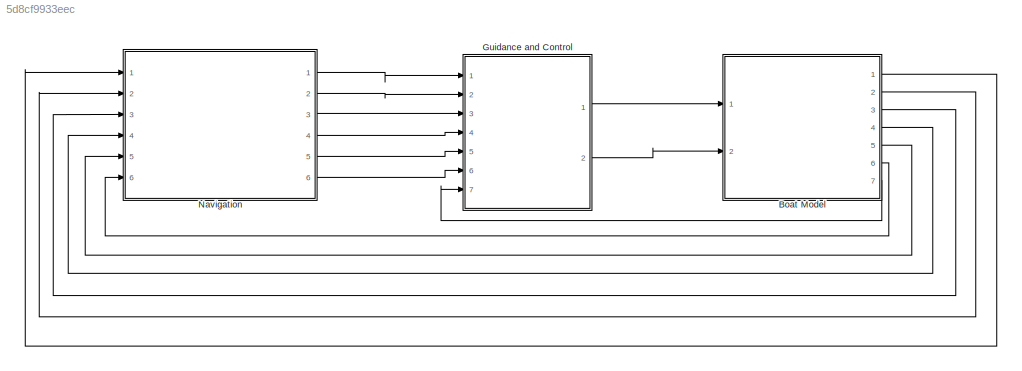
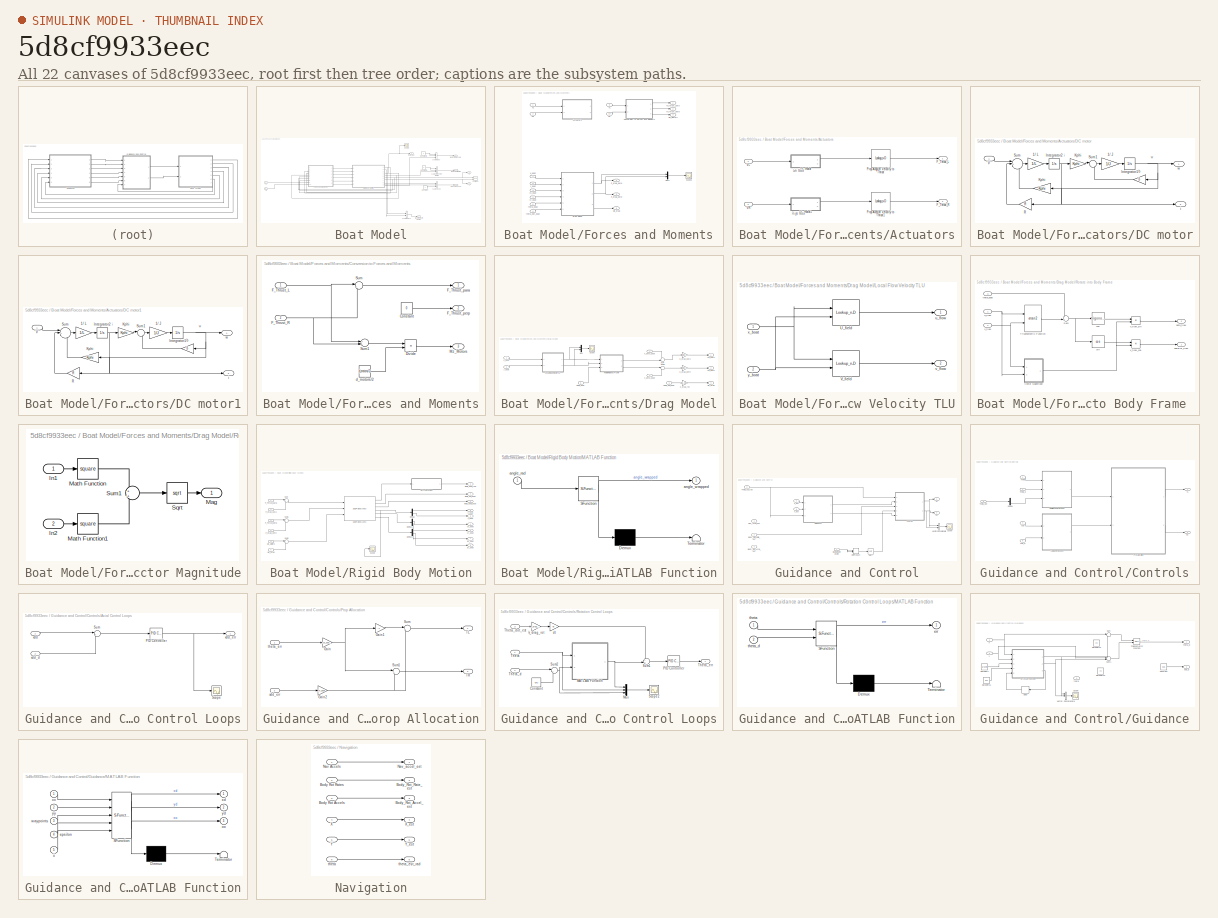
[diagram: thumbnail index - all 22 canvases of the model, root first then tree order]
MODEL slx_5d8cf9933eec
KIND model
CONFIG AbsTol = auto
CONFIG FixedStep = dt
CONFIG MaxStep = auto
CONFIG MinStep = auto
CONFIG RelTol = 1e-3
CONFIG SampleTimeConstraint = Unconstrained
CONFIG Solver = ode3
CONFIG SolverMode = Auto
CONFIG SolverName = ode3
CONFIG StartTime = 0.0
CONFIG StopTime = 100
BLOCK [SubSystem] Boat Model
  Ports = [2, 7]
  RequestExecContextInheritance = off
BLOCK [Concatenate] Boat Model/3 Axis Accel
  NumInputs = 3
  Ports = [3, 1]
BLOCK [Concatenate] Boat Model/3 Axis Body
  NumInputs = 3
  Ports = [3, 1]
BLOCK [Concatenate] Boat Model/3 Axis Body Rot Rates
  NumInputs = 3
  Ports = [3, 1]
BLOCK [Concatenate] Boat Model/3 Axis Body1
  Ports = [2, 1]
BLOCK [Outport] Boat Model/Boat Velocity Vector
  IconDisplay = Port number
  Port = 7
BLOCK [Outport] Boat Model/Body Rot Accels
  IconDisplay = Port number
  Port = 3
BLOCK [Outport] Boat Model/Body Rot Rates
  IconDisplay = Port number
  Port = 2
BLOCK [Constant] Boat Model/Constant
  Value = 0
BLOCK [Constant] Boat Model/Constant1
  Value = 0
BLOCK [Constant] Boat Model/Constant2
  Value = 0
BLOCK [SubSystem] Boat Model/Forces and Moments
  Ports = [10, 6]
  RequestExecContextInheritance = off
BLOCK [SubSystem] Boat Model/Forces and Moments/Actuators
  Ports = [2, 2]
  RequestExecContextInheritance = off
BLOCK [SubSystem] Boat Model/Forces and Moments/Actuators/DC motor
  Ports = [1, 2]
  RequestExecContextInheritance = off
BLOCK [Gain] Boat Model/Forces and Moments/Actuators/DC motor/1// J
  Gain = 1/J
  OutDataTypeStr = Inherit: Inherit via internal rule
  ParamDataTypeStr = Inherit: Inherit via internal rule
  SaturateOnIntegerOverflow = off
BLOCK [Gain] Boat Model/Forces and Moments/Actuators/DC motor/1// L
  Gain = 1/L
  OutDataTypeStr = Inherit: Inherit via internal rule
  ParamDataTypeStr = Inherit: Inherit via internal rule
  SaturateOnIntegerOverflow = off
BLOCK [Integrator] Boat Model/Forces and Moments/Actuators/DC motor/Integrator1
  Ports = [1, 1]
BLOCK [Integrator] Boat Model/Forces and Moments/Actuators/DC motor/Integrator2
  Ports = [1, 1]
BLOCK [Gain] Boat Model/Forces and Moments/Actuators/DC motor/Kphi
  Gain = Kphi
  OutDataTypeStr = Inherit: Inherit via internal rule
  ParamDataTypeStr = Inherit: Inherit via internal rule
  SaturateOnIntegerOverflow = off
BLOCK [Gain] Boat Model/Forces and Moments/Actuators/DC motor/Kphi 
  Gain = Kphi
  OutDataTypeStr = Inherit: Inherit via internal rule
  ParamDataTypeStr = Inherit: Inherit via internal rule
  SaturateOnIntegerOverflow = off
BLOCK [Gain] Boat Model/Forces and Moments/Actuators/DC motor/R
  Gain = R
  OutDataTypeStr = Inherit: Inherit via internal rule
  ParamDataTypeStr = Inherit: Inherit via internal rule
  SaturateOnIntegerOverflow = off
BLOCK [Sum] Boat Model/Forces and Moments/Actuators/DC motor/Sum
  IconShape = round
  InputSameDT = off
  Inputs = |+--
  OutDataTypeStr = Inherit: Inherit via internal rule
  Ports = [3, 1]
  SaturateOnIntegerOverflow = off
BLOCK [Sum] Boat Model/Forces and Moments/Actuators/DC motor/Sum1
  IconShape = round
  InputSameDT = off
  Inputs = |+-
  OutDataTypeStr = Inherit: Inherit via internal rule
  Ports = [2, 1]
  SaturateOnIntegerOverflow = off
BLOCK [Inport] Boat Model/Forces and Moments/Actuators/DC motor/V
  IconDisplay = Port number
BLOCK [Gain] Boat Model/Forces and Moments/Actuators/DC motor/b
  Gain = b
  OutDataTypeStr = Inherit: Inherit via internal rule
  ParamDataTypeStr = Inherit: Inherit via internal rule
  SaturateOnIntegerOverflow = off
BLOCK [Outport] Boat Model/Forces and Moments/Actuators/DC motor/i
  IconDisplay = Port number
  Port = 2
BLOCK [Outport] Boat Model/Forces and Moments/Actuators/DC motor/w
  IconDisplay = Port number
BLOCK [SubSystem] Boat Model/Forces and Moments/Actuators/DC motor1
  Ports = [1, 2]
  RequestExecContextInheritance = off
BLOCK [Gain] Boat Model/Forces and Moments/Actuators/DC motor1/1// J
  Gain = 1/J
  OutDataTypeStr = Inherit: Inherit via internal rule
  ParamDataTypeStr = Inherit: Inherit via internal rule
  SaturateOnIntegerOverflow = off
BLOCK [Gain] Boat Model/Forces and Moments/Actuators/DC motor1/1// L
  Gain = 1/L
  OutDataTypeStr = Inherit: Inherit via internal rule
  ParamDataTypeStr = Inherit: Inherit via internal rule
  SaturateOnIntegerOverflow = off
BLOCK [Integrator] Boat Model/Forces and Moments/Actuators/DC motor1/Integrator1
  Ports = [1, 1]
BLOCK [Integrator] Boat Model/Forces and Moments/Actuators/DC motor1/Integrator2
  Ports = [1, 1]
BLOCK [Gain] Boat Model/Forces and Moments/Actuators/DC motor1/Kphi
  Gain = Kphi
  OutDataTypeStr = Inherit: Inherit via internal rule
  ParamDataTypeStr = Inherit: Inherit via internal rule
  SaturateOnIntegerOverflow = off
BLOCK [Gain] Boat Model/Forces and Moments/Actuators/DC motor1/Kphi 
  Gain = Kphi
  OutDataTypeStr = Inherit: Inherit via internal rule
  ParamDataTypeStr = Inherit: Inherit via internal rule
  SaturateOnIntegerOverflow = off
BLOCK [Gain] Boat Model/Forces and Moments/Actuators/DC motor1/R
  Gain = R
  OutDataTypeStr = Inherit: Inherit via internal rule
  ParamDataTypeStr = Inherit: Inherit via internal rule
  SaturateOnIntegerOverflow = off
BLOCK [Sum] Boat Model/Forces and Moments/Actuators/DC motor1/Sum
  IconShape = round
  InputSameDT = off
  Inputs = |+--
  OutDataTypeStr = Inherit: Inherit via internal rule
  Ports = [3, 1]
  SaturateOnIntegerOverflow = off
BLOCK [Sum] Boat Model/Forces and Moments/Actuators/DC motor1/Sum1
  IconShape = round
  InputSameDT = off
  Inputs = |+-
  OutDataTypeStr = Inherit: Inherit via internal rule
  Ports = [2, 1]
  SaturateOnIntegerOverflow = off
BLOCK [Inport] Boat Model/Forces and Moments/Actuators/DC motor1/V
  IconDisplay = Port number
BLOCK [Gain] Boat Model/Forces and Moments/Actuators/DC motor1/b
  Gain = b
  OutDataTypeStr = Inherit: Inherit via internal rule
  ParamDataTypeStr = Inherit: Inherit via internal rule
  SaturateOnIntegerOverflow = off
BLOCK [Outport] Boat Model/Forces and Moments/Actuators/DC motor1/i
  IconDisplay = Port number
  Port = 2
BLOCK [Outport] Boat Model/Forces and Moments/Actuators/DC motor1/w
  IconDisplay = Port number
BLOCK [Outport] Boat Model/Forces and Moments/Actuators/F_Thrust_L
  IconDisplay = Port number
BLOCK [Outport] Boat Model/Forces and Moments/Actuators/F_Thrust_R
  IconDisplay = Port number
  Port = 2
BLOCK [Lookup_n-D] Boat Model/Forces and Moments/Actuators/Prop Angular Velocity to Thrust
  BreakpointsForDimension1 = [-5:5]
  InternalRulePriority = Speed
  NumberOfTableDimensions = 1
  Ports = [1, 1]
  RndMeth = Simplest
  Table = tanh([-5:5])
BLOCK [Lookup_n-D] Boat Model/Forces and Moments/Actuators/Prop Angular Velocity to Thrust1
  BreakpointsForDimension1 = [-5:5]
  InternalRulePriority = Speed
  NumberOfTableDimensions = 1
  Ports = [1, 1]
  RndMeth = Simplest
  Table = tanh([-5:5])
BLOCK [Inport] Boat Model/Forces and Moments/Actuators/VL
  IconDisplay = Port number
BLOCK [Inport] Boat Model/Forces and Moments/Actuators/VR
  IconDisplay = Port number
  Port = 2
BLOCK [SubSystem] Boat Model/Forces and Moments/Conversion to Forces and Moments
  Ports = [2, 3]
  RequestExecContextInheritance = off
BLOCK [Constant] Boat Model/Forces and Moments/Conversion to Forces and Moments/Constant
  Value = 0
BLOCK [Product] Boat Model/Forces and Moments/Conversion to Forces and Moments/Divide
  InputSameDT = off
  Inputs = */
  OutDataTypeStr = Inherit: Inherit via internal rule
  Ports = [2, 1]
  RndMeth = Floor
  SaturateOnIntegerOverflow = off
BLOCK [Inport] Boat Model/Forces and Moments/Conversion to Forces and Moments/F_Thrust_L
  IconDisplay = Port number
BLOCK [Inport] Boat Model/Forces and Moments/Conversion to Forces and Moments/F_Thrust_R
  IconDisplay = Port number
  Port = 2
BLOCK [Outport] Boat Model/Forces and Moments/Conversion to Forces and Moments/F_Thrust_para
  IconDisplay = Port number
BLOCK [Outport] Boat Model/Forces and Moments/Conversion to Forces and Moments/F_Thrust_perp
  IconDisplay = Port number
  Port = 2
BLOCK [Outport] Boat Model/Forces and Moments/Conversion to Forces and Moments/Mz_Motors
  IconDisplay = Port number
  Port = 3
BLOCK [Sum] Boat Model/Forces and Moments/Conversion to Forces and Moments/Sum
  IconShape = round
  InputSameDT = off
  Inputs = |++
  OutDataTypeStr = Inherit: Inherit via internal rule
  Ports = [2, 1]
  SaturateOnIntegerOverflow = off
BLOCK [Sum] Boat Model/Forces and Moments/Conversion to Forces and Moments/Sum1
  IconShape = round
  InputSameDT = off
  Inputs = +-|
  OutDataTypeStr = Inherit: Inherit via internal rule
  Ports = [2, 1]
  SaturateOnIntegerOverflow = off
BLOCK [Constant] Boat Model/Forces and Moments/Conversion to Forces and Moments/d_motors//2
  Value = d_motors/2
BLOCK [SubSystem] Boat Model/Forces and Moments/Drag Model
  Ports = [6, 3]
  RequestExecContextInheritance = off
BLOCK [Outport] Boat Model/Forces and Moments/Drag Model/Fd_para
  IconDisplay = Port number
BLOCK [Outport] Boat Model/Forces and Moments/Drag Model/Fd_perp
  IconDisplay = Port number
  Port = 2
BLOCK [SubSystem] Boat Model/Forces and Moments/Drag Model/Local Flow Velocity TLU
  Ports = [2, 2]
  RequestExecContextInheritance = off
BLOCK [Lookup_n-D] Boat Model/Forces and Moments/Drag Model/Local Flow Velocity TLU/U_field
  BeginIndexSearchUsingPreviousIndexResult = on
  BreakpointsForDimension1 = xs
  BreakpointsForDimension2 = ys
  ExtrapMethod = Clip
  InternalRulePriority = Speed
  Ports = [2, 1]
  RndMeth = Simplest
  Table = U_field'
  UseLastTableValue = on
BLOCK [Lookup_n-D] Boat Model/Forces and Moments/Drag Model/Local Flow Velocity TLU/V_field
  BeginIndexSearchUsingPreviousIndexResult = on
  BreakpointsForDimension1 = xs
  BreakpointsForDimension2 = ys
  ExtrapMethod = Clip
  InternalRulePriority = Speed
  Ports = [2, 1]
  RndMeth = Simplest
  Table = V_field_load'
  UseLastTableValue = on
BLOCK [Outport] Boat Model/Forces and Moments/Drag Model/Local Flow Velocity TLU/u_flow
  IconDisplay = Port number
BLOCK [Outport] Boat Model/Forces and Moments/Drag Model/Local Flow Velocity TLU/v_flow
  IconDisplay = Port number
  Port = 2
BLOCK [Inport] Boat Model/Forces and Moments/Drag Model/Local Flow Velocity TLU/x_boat
  IconDisplay = Port number
BLOCK [Inport] Boat Model/Forces and Moments/Drag Model/Local Flow Velocity TLU/y_boat
  IconDisplay = Port number
  Port = 2
BLOCK [Mux] Boat Model/Forces and Moments/Drag Model/Mux
  DisplayOption = bar
  Inputs = 2
  Ports = [2, 1]
BLOCK [Outport] Boat Model/Forces and Moments/Drag Model/Mz_drag
  IconDisplay = Port number
  Port = 3
BLOCK [SubSystem] Boat Model/Forces and Moments/Drag Model/Rotate into Body Frame 
  Ports = [3, 2]
  RequestExecContextInheritance = off
BLOCK [Sum] Boat Model/Forces and Moments/Drag Model/Rotate into Body Frame /Sum
  IconShape = round
  InputSameDT = off
  Inputs = -+|
  OutDataTypeStr = Inherit: Inherit via internal rule
  Ports = [2, 1]
  SaturateOnIntegerOverflow = off
BLOCK [Trigonometry] Boat Model/Forces and Moments/Drag Model/Rotate into Body Frame /Trigonometric Function
  Operator = atan2
  Ports = [2, 1]
BLOCK [SubSystem] Boat Model/Forces and Moments/Drag Model/Rotate into Body Frame /Vector Magnitude
  Ports = [2, 1]
  RequestExecContextInheritance = off
BLOCK [Inport] Boat Model/Forces and Moments/Drag Model/Rotate into Body Frame /Vector Magnitude/In1
  IconDisplay = Port number
BLOCK [Inport] Boat Model/Forces and Moments/Drag Model/Rotate into Body Frame /Vector Magnitude/In2
  IconDisplay = Port number
  Port = 2
BLOCK [Outport] Boat Model/Forces and Moments/Drag Model/Rotate into Body Frame /Vector Magnitude/Mag
  IconDisplay = Port number
BLOCK [Math] Boat Model/Forces and Moments/Drag Model/Rotate into Body Frame /Vector Magnitude/Math Function
  Operator = square
  Ports = [1, 1]
BLOCK [Math] Boat Model/Forces and Moments/Drag Model/Rotate into Body Frame /Vector Magnitude/Math Function1
  Operator = square
  Ports = [1, 1]
BLOCK [Sqrt] Boat Model/Forces and Moments/Drag Model/Rotate into Body Frame /Vector Magnitude/Sqrt
BLOCK [Sum] Boat Model/Forces and Moments/Drag Model/Rotate into Body Frame /Vector Magnitude/Sum1
  IconShape = round
  InputSameDT = off
  OutDataTypeStr = Inherit: Inherit via internal rule
  Ports = [2, 1]
  SaturateOnIntegerOverflow = off
BLOCK [Trigonometry] Boat Model/Forces and Moments/Drag Model/Rotate into Body Frame /cos 
  Ports = [1, 1]
BLOCK [Outport] Boat Model/Forces and Moments/Drag Model/Rotate into Body Frame /parallel_flow
  IconDisplay = Port number
BLOCK [Outport] Boat Model/Forces and Moments/Drag Model/Rotate into Body Frame /perp_flow
  IconDisplay = Port number
  Port = 2
BLOCK [Trigonometry] Boat Model/Forces and Moments/Drag Model/Rotate into Body Frame /sin
  Operator = cos
  Ports = [1, 1]
BLOCK [Inport] Boat Model/Forces and Moments/Drag Model/Rotate into Body Frame /theta_boat
  IconDisplay = Port number
  Port = 3
BLOCK [Inport] Boat Model/Forces and Moments/Drag Model/Rotate into Body Frame /u_flow
  IconDisplay = Port number
BLOCK [Inport] Boat Model/Forces and Moments/Drag Model/Rotate into Body Frame /v_flow
  IconDisplay = Port number
  Port = 2
BLOCK [Product] Boat Model/Forces and Moments/Drag Model/Rotate into Body Frame /v_flow_cos
  InputSameDT = off
  Inputs = **
  OutDataTypeStr = Inherit: Inherit via internal rule
  Ports = [2, 1]
  RndMeth = Floor
  SaturateOnIntegerOverflow = off
BLOCK [Product] Boat Model/Forces and Moments/Drag Model/Rotate into Body Frame /v_flow_sin
  InputSameDT = off
  Inputs = **
  OutDataTypeStr = Inherit: Inherit via internal rule
  Ports = [2, 1]
  RndMeth = Floor
  SaturateOnIntegerOverflow = off
BLOCK [Scope] Boat Model/Forces and Moments/Drag Model/Scope
  Floating = off
  NumInputPorts = 1
  Ports = [1]
  SaveName = ScopeData7
BLOCK [Sum] Boat Model/Forces and Moments/Drag Model/Sum
  IconShape = round
  InputSameDT = off
  Inputs = +-|
  OutDataTypeStr = Inherit: Inherit via internal rule
  Ports = [2, 1]
  SaturateOnIntegerOverflow = off
BLOCK [Sum] Boat Model/Forces and Moments/Drag Model/Sum1
  IconShape = round
  InputSameDT = off
  Inputs = |-+
  OutDataTypeStr = Inherit: Inherit via internal rule
  Ports = [2, 1]
  SaturateOnIntegerOverflow = off
BLOCK [Gain] Boat Model/Forces and Moments/Drag Model/k_drag_para
  Gain = k_drag_para
  OutDataTypeStr = Inherit: Inherit via internal rule
  ParamDataTypeStr = Inherit: Inherit via internal rule
  SaturateOnIntegerOverflow = off
BLOCK [Gain] Boat Model/Forces and Moments/Drag Model/k_drag_perp
  Gain = k_drag_perp
  OutDataTypeStr = Inherit: Inherit via internal rule
  ParamDataTypeStr = Inherit: Inherit via internal rule
  SaturateOnIntegerOverflow = off
BLOCK [Gain] Boat Model/Forces and Moments/Drag Model/k_drag_rot
  Gain = 1*k_drag_rot
  OutDataTypeStr = Inherit: Inherit via internal rule
  ParamDataTypeStr = Inherit: Inherit via internal rule
  SaturateOnIntegerOverflow = off
BLOCK [Inport] Boat Model/Forces and Moments/Drag Model/theta_boat
  IconDisplay = Port number
  Port = 5
BLOCK [Inport] Boat Model/Forces and Moments/Drag Model/theta_dot_boat
  IconDisplay = Port number
  Port = 6
BLOCK [Inport] Boat Model/Forces and Moments/Drag Model/v_para_boat
  IconDisplay = Port number
  Port = 3
BLOCK [Inport] Boat Model/Forces and Moments/Drag Model/v_perp_boat
  IconDisplay = Port number
  Port = 4
BLOCK [Inport] Boat Model/Forces and Moments/Drag Model/x_boat
  IconDisplay = Port number
BLOCK [Inport] Boat Model/Forces and Moments/Drag Model/y_boat
  IconDisplay = Port number
  Port = 2
BLOCK [Outport] Boat Model/Forces and Moments/F_drag_para
  IconDisplay = Port number
  Port = 4
BLOCK [Outport] Boat Model/Forces and Moments/F_drag_perp
  IconDisplay = Port number
  Port = 5
BLOCK [Outport] Boat Model/Forces and Moments/F_thrust_para
  IconDisplay = Port number
BLOCK [Outport] Boat Model/Forces and Moments/F_thrust_perp
  IconDisplay = Port number
  Port = 2
BLOCK [Mux] Boat Model/Forces and Moments/Mux1
  DisplayOption = bar
  Inputs = 2
  Ports = [2, 1]
BLOCK [Outport] Boat Model/Forces and Moments/Mz_drag
  IconDisplay = Port number
  Port = 6
BLOCK [Outport] Boat Model/Forces and Moments/Mz_motors
  IconDisplay = Port number
  Port = 3
BLOCK [Scope] Boat Model/Forces and Moments/Scope1
  Floating = off
  NumInputPorts = 1
  Ports = [1]
  SaveName = ScopeData6
BLOCK [Inport] Boat Model/Forces and Moments/TL
  IconDisplay = Port number
  Port = 9
BLOCK [Inport] Boat Model/Forces and Moments/TR
  IconDisplay = Port number
  Port = 10
BLOCK [Inport] Boat Model/Forces and Moments/VL
  IconDisplay = Port number
BLOCK [Inport] Boat Model/Forces and Moments/VR
  IconDisplay = Port number
  Port = 2
BLOCK [Inport] Boat Model/Forces and Moments/X_boat
  IconDisplay = Port number
  Port = 7
BLOCK [Inport] Boat Model/Forces and Moments/Y_boat
  IconDisplay = Port number
  Port = 8
BLOCK [Inport] Boat Model/Forces and Moments/theta_boat
  IconDisplay = Port number
  Port = 5
BLOCK [Inport] Boat Model/Forces and Moments/theta_dot_boat
  IconDisplay = Port number
  Port = 6
BLOCK [Inport] Boat Model/Forces and Moments/vx_boat
  IconDisplay = Port number
  Port = 3
BLOCK [Inport] Boat Model/Forces and Moments/vy_boat
  IconDisplay = Port number
  Port = 4
BLOCK [Outport] Boat Model/Nav Axis Accel
  IconDisplay = Port number
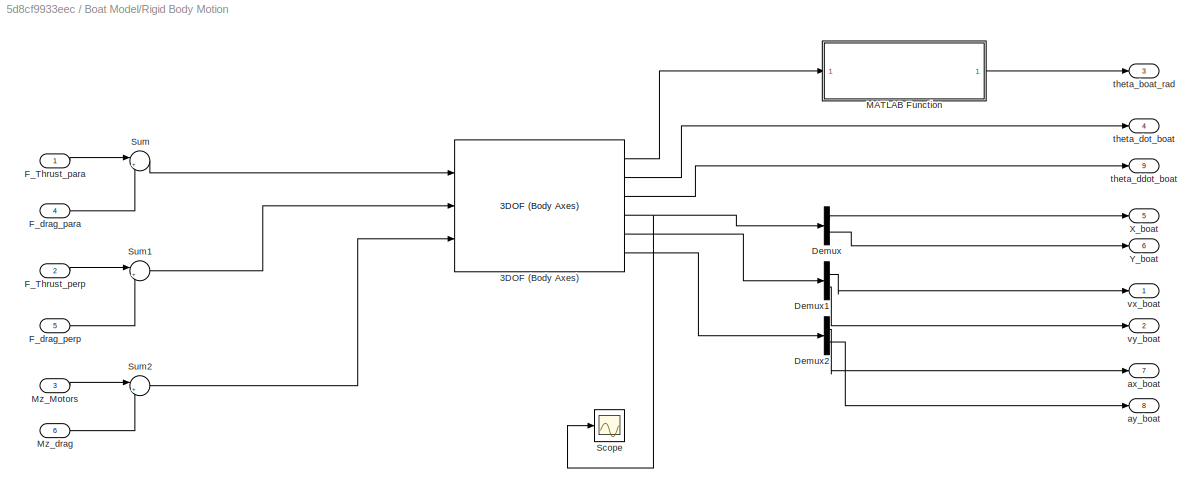
BLOCK [SubSystem] Boat Model/Rigid Body Motion
  Ports = [6, 9]
  RequestExecContextInheritance = off
BLOCK [Reference] Boat Model/Rigid Body Motion/3DOF (Body Axes)  REF=aerolib3dof2/3DOF (Body Axes)
  Iyy = Izz_boat
  Iyy_e = 0.5
  Iyy_f = 3.0
  Ports = [3, 6]
  SourceBlock = aerolib3dof2/3DOF (Body Axes)
  SourceType = 3DOF EoM
  alpha_ini = alpha0_boat
  g = 0
  g_in = Internal
  mass = m_boat
  mass_e = 0.5
  mass_f = 3.0
  mtype = Fixed
  pos_ini = x0_boat
  q_ini = theta_dot0_boat
  theta_ini = theta0_boat
  units = Metric (MKS)
  v_ini = v0_boat_mag
  vre_flag = on
BLOCK [Demux] Boat Model/Rigid Body Motion/Demux
  DisplayOption = bar
  Outputs = 2
  Ports = [1, 2]
BLOCK [Demux] Boat Model/Rigid Body Motion/Demux1
  DisplayOption = bar
  Outputs = 2
  Ports = [1, 2]
BLOCK [Demux] Boat Model/Rigid Body Motion/Demux2
  DisplayOption = bar
  Outputs = 2
  Ports = [1, 2]
BLOCK [Inport] Boat Model/Rigid Body Motion/F_Thrust_para
  IconDisplay = Port number
BLOCK [Inport] Boat Model/Rigid Body Motion/F_Thrust_perp
  IconDisplay = Port number
  Port = 2
BLOCK [Inport] Boat Model/Rigid Body Motion/F_drag_para
  IconDisplay = Port number
  Port = 4
BLOCK [Inport] Boat Model/Rigid Body Motion/F_drag_perp
  IconDisplay = Port number
  Port = 5
BLOCK [SubSystem] Boat Model/Rigid Body Motion/MATLAB Function
  ErrorFcn = Stateflow.Translate.translate
  PermitHierarchicalResolution = ExplicitOnly
  Ports = [1, 1]
  RequestExecContextInheritance = off
  SFBlockType = MATLAB Function
  TreatAsAtomicUnit = on
BLOCK [Demux] Boat Model/Rigid Body Motion/MATLAB Function/ Demux 
  Outputs = 1
  Ports = [1, 1]
BLOCK [S-Function] Boat Model/Rigid Body Motion/MATLAB Function/ SFunction 
  EnableBusSupport = on
  FunctionName = sf_sfun
  PortCounts = [1 2]
  Ports = [1, 2]
  Tag = Stateflow S-Function Boat_Simulation_Current 2
BLOCK [Terminator] Boat Model/Rigid Body Motion/MATLAB Function/ Terminator 
BLOCK [Inport] Boat Model/Rigid Body Motion/MATLAB Function/angle_rad
  IconDisplay = Port number
BLOCK [Outport] Boat Model/Rigid Body Motion/MATLAB Function/angle_wrapped
  IconDisplay = Port number
BLOCK [Inport] Boat Model/Rigid Body Motion/Mz_Motors
  IconDisplay = Port number
  Port = 3
BLOCK [Inport] Boat Model/Rigid Body Motion/Mz_drag
  IconDisplay = Port number
  Port = 6
BLOCK [Scope] Boat Model/Rigid Body Motion/Scope
  Floating = off
  NumInputPorts = 1
  Ports = [1]
  SaveName = ScopeData1
BLOCK [Sum] Boat Model/Rigid Body Motion/Sum
  IconShape = round
  InputSameDT = off
  Inputs = |+-
  OutDataTypeStr = Inherit: Inherit via internal rule
  Ports = [2, 1]
  SaturateOnIntegerOverflow = off
BLOCK [Sum] Boat Model/Rigid Body Motion/Sum1
  IconShape = round
  InputSameDT = off
  Inputs = |+-
  OutDataTypeStr = Inherit: Inherit via internal rule
  Ports = [2, 1]
  SaturateOnIntegerOverflow = off
BLOCK [Sum] Boat Model/Rigid Body Motion/Sum2
  IconShape = round
  InputSameDT = off
  Inputs = |+-
  OutDataTypeStr = Inherit: Inherit via internal rule
  Ports = [2, 1]
  SaturateOnIntegerOverflow = off
BLOCK [Outport] Boat Model/Rigid Body Motion/X_boat
  IconDisplay = Port number
  Port = 5
BLOCK [Outport] Boat Model/Rigid Body Motion/Y_boat
  IconDisplay = Port number
  Port = 6
BLOCK [Outport] Boat Model/Rigid Body Motion/ax_boat
  IconDisplay = Port number
  Port = 7
BLOCK [Outport] Boat Model/Rigid Body Motion/ay_boat
  IconDisplay = Port number
  Port = 8
BLOCK [Outport] Boat Model/Rigid Body Motion/theta_boat_rad
  IconDisplay = Port number
  Port = 3
BLOCK [Outport] Boat Model/Rigid Body Motion/theta_ddot_boat
  IconDisplay = Port number
  Port = 9
BLOCK [Outport] Boat Model/Rigid Body Motion/theta_dot_boat
  IconDisplay = Port number
  Port = 4
BLOCK [Outport] Boat Model/Rigid Body Motion/vx_boat
  IconDisplay = Port number
BLOCK [Outport] Boat Model/Rigid Body Motion/vy_boat
  IconDisplay = Port number
  Port = 2
BLOCK [Scope] Boat Model/Scope
  Floating = off
  NumInputPorts = 1
  Ports = [1]
  SaveName = ScopeData5
BLOCK [Inport] Boat Model/TL
  IconDisplay = Port number
BLOCK [Inport] Boat Model/TR
  IconDisplay = Port number
  Port = 2
BLOCK [Outport] Boat Model/X
  IconDisplay = Port number
  Port = 4
BLOCK [Reference] Boat Model/XY Graph  REF=simulink/Sinks/XY Graph
  Ports = [2]
  SourceBlock = simulink/Sinks/XY Graph
  SourceType = XY scope.
  st = 0.01
  xmax = 2
  xmin = 0
  ymax = 1
  ymin = 0
BLOCK [Outport] Boat Model/Y
  IconDisplay = Port number
  Port = 5
BLOCK [Outport] Boat Model/theta_rad
  IconDisplay = Port number
  Port = 6
BLOCK [SubSystem] Guidance and Control
  Ports = [7, 2]
  RequestExecContextInheritance = off
BLOCK [Inport] Guidance and Control/Boat Velocity Vector
  IconDisplay = Port number
  Port = 7
BLOCK [Inport] Guidance and Control/Body_Rot_Accel_est
  IconDisplay = Port number
  Port = 3
BLOCK [Inport] Guidance and Control/Body_Rot_Rate_est
  IconDisplay = Port number
  Port = 2
BLOCK [SubSystem] Guidance and Control/Controls
  Ports = [5, 2]
  RequestExecContextInheritance = off
BLOCK [SubSystem] Guidance and Control/Controls/Axial Control Loops
  Ports = [2, 1]
  RequestExecContextInheritance = off
BLOCK [Reference] Guidance and Control/Controls/Axial Control Loops/PID Controller  REF=simulink/Continuous/PID Controller
  AntiWindupMode = none
  Controller = PID
  ControllerParametersSource = internal
  D = 0
  DGainOutDataTypeStr = Inherit: Inherit via internal rule
  DOutDataTypeStr = Inherit: Inherit via internal rule
  DOutMax = []
  DOutMin = []
  DParamDataTypeStr = Inherit: Inherit via internal rule
  DParamMax = []
  DParamMin = []
  DProdOutDataTypeStr = Inherit: Inherit via internal rule
  DifferentiatorICPrevScaledInput = 0
  DifferentiatorOutDataTypeStr = Inherit: Inherit via internal rule
  DifferentiatorOutMax = []
  DifferentiatorOutMin = []
  ExternalReset = none
  FilterContinuousStateAttributes = ''
  FilterMethod = Forward Euler
  FilterOutDataTypeStr = Inherit: Inherit via internal rule
  FilterOutMax = []
  FilterOutMin = []
  FilterRTWStateStorageClass = Auto
  FilterStateMustResolveToSignalObject = off
  Form = Parallel
  I = 0
  IGainOutDataTypeStr = Inherit: Inherit via internal rule
  IOutDataTypeStr = Inherit: Inherit via internal rule
  IOutMax = []
  IOutMin = []
  IParamDataTypeStr = Inherit: Inherit via internal rule
  IParamMax = []
  IParamMin = []
  IProdOutDataTypeStr = Inherit: Inherit via internal rule
  IgnoreLimit = off
  InitialConditionForFilter = 0
  InitialConditionForIntegrator = 0
  InitialConditionSource = internal
  IntegratorContinuousStateAttributes = ''
  IntegratorMethod = Forward Euler
  IntegratorOutDataTypeStr = Inherit: Inherit via internal rule
  IntegratorOutMax = []
  IntegratorOutMin = []
  IntegratorRTWStateStorageClass = Auto
  IntegratorStateMustResolveToSignalObject = off
  Kb = 1
  KbOutDataTypeStr = Inherit: Inherit via internal rule
  KbOutMax = []
  KbOutMin = []
  KbParamDataTypeStr = Inherit: Inherit via internal rule
  KbParamMax = []
  KbParamMin = []
  Kt = 1
  KtOutDataTypeStr = Inherit: Inherit via internal rule
  KtOutMax = []
  KtOutMin = []
  KtParamDataTypeStr = Inherit: Inherit via internal rule
  KtParamMax = []
  KtParamMin = []
  LimitOutput = off
  LinearizeAsGain = on
  LockScale = off
  LowerSaturationLimit = -inf
  N = 1
  NGainOutDataTypeStr = Inherit: Inherit via internal rule
  NOutDataTypeStr = Inherit: Inherit via internal rule
  NOutMax = []
  NOutMin = []
  NParamDataTypeStr = Inherit: Inherit via internal rule
  NParamMax = []
  NParamMin = []
  NProdOutDataTypeStr = Inherit: Inherit via internal rule
  P = 2
  PGainOutDataTypeStr = Inherit: Inherit via internal rule
  POutDataTypeStr = Inherit: Inherit via internal rule
  POutMax = []
  POutMin = []
  PParamDataTypeStr = Inherit: Inherit via internal rule
  PParamMax = []
  PParamMin = []
  PProdOutDataTypeStr = Inherit: Inherit via internal rule
  Ports = [1, 1]
  RndMeth = Floor
  SampleTime = -1
  SaturateOnIntegerOverflow = off
  SaturationOutDataTypeStr = Inherit: Same as input
  SaturationOutMax = []
  SaturationOutMin = []
  SourceBlock = simulink/Continuous/PID Controller
  SourceType = PID 1dof
  SumAccumDataTypeStr = Inherit: Inherit via internal rule
  SumDAccumDataTypeStr = Inherit: Inherit via internal rule
  SumDOutDataTypeStr = Inherit: Inherit via internal rule
  SumDOutMax = []
  SumDOutMin = []
  SumI1AccumDataTypeStr = Inherit: Inherit via internal rule
  SumI1OutDataTypeStr = Inherit: Inherit via internal rule
  SumI1OutMax = []
  SumI1OutMin = []
  SumI2AccumDataTypeStr = Inherit: Inherit via internal rule
  SumI2OutDataTypeStr = Inherit: Inherit via internal rule
  SumI2OutMax = []
  SumI2OutMin = []
  SumI3AccumDataTypeStr = Inherit: Inherit via internal rule
  SumI3OutDataTypeStr = Inherit: Inherit via internal rule
  SumI3OutMax = []
  SumI3OutMin = []
  SumOutDataTypeStr = Inherit: Inherit via internal rule
  SumOutMax = []
  SumOutMin = []
  TimeDomain = Continuous-time
  TrackingMode = off
  UpperSaturationLimit = inf
  UseFilter = on
  ZeroCross = on
BLOCK [Scope] Guidance and Control/Controls/Axial Control Loops/Scope
  Floating = off
  NumInputPorts = 1
  Ports = [1]
  SaveName = ScopeData3
BLOCK [Sum] Guidance and Control/Controls/Axial Control Loops/Sum
  IconShape = round
  InputSameDT = off
  Inputs = |++
  OutDataTypeStr = Inherit: Inherit via internal rule
  Ports = [2, 1]
  SaturateOnIntegerOverflow = off
BLOCK [Inport] Guidance and Control/Controls/Axial Control Loops/xdd
  IconDisplay = Port number
BLOCK [Inport] Guidance and Control/Controls/Axial Control Loops/xdd_d
  IconDisplay = Port number
  Port = 2
BLOCK [Outport] Guidance and Control/Controls/Axial Control Loops/xdd_err
  IconDisplay = Port number
BLOCK [Demux] Guidance and Control/Controls/Demux
  DisplayOption = bar
  Outputs = 3
  Ports = [1, 3]
BLOCK [SubSystem] Guidance and Control/Controls/Prop Allocation
  Ports = [2, 2]
  RequestExecContextInheritance = off
BLOCK [Gain] Guidance and Control/Controls/Prop Allocation/Gain
  Gain = Izz_boat/(2*d_motors)
  OutDataTypeStr = Inherit: Inherit via internal rule
  ParamDataTypeStr = Inherit: Inherit via internal rule
  SaturateOnIntegerOverflow = off
BLOCK [Gain] Guidance and Control/Controls/Prop Allocation/Gain1
  Gain = -1
  OutDataTypeStr = Inherit: Inherit via internal rule
  ParamDataTypeStr = Inherit: Inherit via internal rule
  SaturateOnIntegerOverflow = off
BLOCK [Gain] Guidance and Control/Controls/Prop Allocation/Gain2
  Gain = m_boat
  OutDataTypeStr = Inherit: Inherit via internal rule
  ParamDataTypeStr = Inherit: Inherit via internal rule
  SaturateOnIntegerOverflow = off
BLOCK [Sum] Guidance and Control/Controls/Prop Allocation/Sum
  IconShape = round
  InputSameDT = off
  Inputs = |++
  OutDataTypeStr = Inherit: Inherit via internal rule
  Ports = [2, 1]
  SaturateOnIntegerOverflow = off
BLOCK [Sum] Guidance and Control/Controls/Prop Allocation/Sum1
  IconShape = round
  InputSameDT = off
  Inputs = |++
  OutDataTypeStr = Inherit: Inherit via internal rule
  Ports = [2, 1]
  SaturateOnIntegerOverflow = off
BLOCK [Outport] Guidance and Control/Controls/Prop Allocation/TL
  IconDisplay = Port number
BLOCK [Outport] Guidance and Control/Controls/Prop Allocation/TR
  IconDisplay = Port number
  Port = 2
BLOCK [Inport] Guidance and Control/Controls/Prop Allocation/theta_err
  IconDisplay = Port number
BLOCK [Inport] Guidance and Control/Controls/Prop Allocation/xdd_err
  IconDisplay = Port number
  Port = 2
BLOCK [SubSystem] Guidance and Control/Controls/Rotation Control Loops
  Ports = [3, 1]
  RequestExecContextInheritance = off
BLOCK [Constant] Guidance and Control/Controls/Rotation Control Loops/Constant
  Value = -pi/2
BLOCK [SubSystem] Guidance and Control/Controls/Rotation Control Loops/MATLAB Function
  ErrorFcn = Stateflow.Translate.translate
  PermitHierarchicalResolution = ExplicitOnly
  Ports = [2, 1]
  RequestExecContextInheritance = off
  SFBlockType = MATLAB Function
  TreatAsAtomicUnit = on
BLOCK [Demux] Guidance and Control/Controls/Rotation Control Loops/MATLAB Function/ Demux 
  Outputs = 1
  Ports = [1, 1]
BLOCK [S-Function] Guidance and Control/Controls/Rotation Control Loops/MATLAB Function/ SFunction 
  EnableBusSupport = on
  FunctionName = sf_sfun
  PortCounts = [2 2]
  Ports = [2, 2]
  Tag = Stateflow S-Function Boat_Simulation_Current 1
BLOCK [Terminator] Guidance and Control/Controls/Rotation Control Loops/MATLAB Function/ Terminator 
BLOCK [Outport] Guidance and Control/Controls/Rotation Control Loops/MATLAB Function/err
  IconDisplay = Port number
BLOCK [Inport] Guidance and Control/Controls/Rotation Control Loops/MATLAB Function/theta
  IconDisplay = Port number
BLOCK [Inport] Guidance and Control/Controls/Rotation Control Loops/MATLAB Function/theta_d
  IconDisplay = Port number
  Port = 2
BLOCK [Mux] Guidance and Control/Controls/Rotation Control Loops/Mux
  DisplayOption = bar
  Inputs = 3
  Ports = [3, 1]
BLOCK [Reference] Guidance and Control/Controls/Rotation Control Loops/PID Controller  REF=simulink/Continuous/PID Controller
  AntiWindupMode = none
  Controller = PID
  ControllerParametersSource = internal
  D = 53.2126725959305
  DGainOutDataTypeStr = Inherit: Inherit via internal rule
  DOutDataTypeStr = Inherit: Inherit via internal rule
  DOutMax = []
  DOutMin = []
  DParamDataTypeStr = Inherit: Inherit via internal rule
  DParamMax = []
  DParamMin = []
  DProdOutDataTypeStr = Inherit: Inherit via internal rule
  DifferentiatorICPrevScaledInput = 0
  DifferentiatorOutDataTypeStr = Inherit: Inherit via internal rule
  DifferentiatorOutMax = []
  DifferentiatorOutMin = []
  ExternalReset = none
  FilterContinuousStateAttributes = ''
  FilterMethod = Forward Euler
  FilterOutDataTypeStr = Inherit: Inherit via internal rule
  FilterOutMax = []
  FilterOutMin = []
  FilterRTWStateStorageClass = Auto
  FilterStateMustResolveToSignalObject = off
  Form = Parallel
  I = 15.2555608974445
  IGainOutDataTypeStr = Inherit: Inherit via internal rule
  IOutDataTypeStr = Inherit: Inherit via internal rule
  IOutMax = []
  IOutMin = []
  IParamDataTypeStr = Inherit: Inherit via internal rule
  IParamMax = []
  IParamMin = []
  IProdOutDataTypeStr = Inherit: Inherit via internal rule
  IgnoreLimit = off
  InitialConditionForFilter = 0
  InitialConditionForIntegrator = 0
  InitialConditionSource = internal
  IntegratorContinuousStateAttributes = ''
  IntegratorMethod = Forward Euler
  IntegratorOutDataTypeStr = Inherit: Inherit via internal rule
  IntegratorOutMax = []
  IntegratorOutMin = []
  IntegratorRTWStateStorageClass = Auto
  IntegratorStateMustResolveToSignalObject = off
  Kb = 1
  KbOutDataTypeStr = Inherit: Inherit via internal rule
  KbOutMax = []
  KbOutMin = []
  KbParamDataTypeStr = Inherit: Inherit via internal rule
  KbParamMax = []
  KbParamMin = []
  Kt = 1
  KtOutDataTypeStr = Inherit: Inherit via internal rule
  KtOutMax = []
  KtOutMin = []
  KtParamDataTypeStr = Inherit: Inherit via internal rule
  KtParamMax = []
  KtParamMin = []
  LimitOutput = off
  LinearizeAsGain = on
  LockScale = off
  LowerSaturationLimit = -inf
  N = 9.87406572709915
  NGainOutDataTypeStr = Inherit: Inherit via internal rule
  NOutDataTypeStr = Inherit: Inherit via internal rule
  NOutMax = []
  NOutMin = []
  NParamDataTypeStr = Inherit: Inherit via internal rule
  NParamMax = []
  NParamMin = []
  NProdOutDataTypeStr = Inherit: Inherit via internal rule
  P = 67.5587249594712
  PGainOutDataTypeStr = Inherit: Inherit via internal rule
  POutDataTypeStr = Inherit: Inherit via internal rule
  POutMax = []
  POutMin = []
  PParamDataTypeStr = Inherit: Inherit via internal rule
  PParamMax = []
  PParamMin = []
  PProdOutDataTypeStr = Inherit: Inherit via internal rule
  Ports = [1, 1]
  RndMeth = Floor
  SampleTime = -1
  SaturateOnIntegerOverflow = off
  SaturationOutDataTypeStr = Inherit: Same as input
  SaturationOutMax = []
  SaturationOutMin = []
  SourceBlock = simulink/Continuous/PID Controller
  SourceType = PID 1dof
  SumAccumDataTypeStr = Inherit: Inherit via internal rule
  SumDAccumDataTypeStr = Inherit: Inherit via internal rule
  SumDOutDataTypeStr = Inherit: Inherit via internal rule
  SumDOutMax = []
  SumDOutMin = []
  SumI1AccumDataTypeStr = Inherit: Inherit via internal rule
  SumI1OutDataTypeStr = Inherit: Inherit via internal rule
  SumI1OutMax = []
  SumI1OutMin = []
  SumI2AccumDataTypeStr = Inherit: Inherit via internal rule
  SumI2OutDataTypeStr = Inherit: Inherit via internal rule
  SumI2OutMax = []
  SumI2OutMin = []
  SumI3AccumDataTypeStr = Inherit: Inherit via internal rule
  SumI3OutDataTypeStr = Inherit: Inherit via internal rule
  SumI3OutMax = []
  SumI3OutMin = []
  SumOutDataTypeStr = Inherit: Inherit via internal rule
  SumOutMax = []
  SumOutMin = []
  TimeDomain = Continuous-time
  TrackingMode = off
  UpperSaturationLimit = inf
  UseFilter = on
  ZeroCross = on
BLOCK [Scope] Guidance and Control/Controls/Rotation Control Loops/Scope2
  Floating = off
  LegendLocations = 0.90399     0.90404    0.076042    0.052189
  NumInputPorts = 1
  Ports = [1]
  ShowLegends = on
  ZoomMode = xonly
BLOCK [Sum] Guidance and Control/Controls/Rotation Control Loops/Sum1
  IconShape = round
  InputSameDT = off
  Inputs = ++|
  OutDataTypeStr = Inherit: Inherit via internal rule
  Ports = [2, 1]
  SaturateOnIntegerOverflow = off
BLOCK [Sum] Guidance and Control/Controls/Rotation Control Loops/Sum2
  IconShape = round
  InputSameDT = off
  Inputs = |++
  OutDataTypeStr = Inherit: Inherit via internal rule
  Ports = [2, 1]
  SaturateOnIntegerOverflow = off
BLOCK [Inport] Guidance and Control/Controls/Rotation Control Loops/Theta
  IconDisplay = Port number
BLOCK [Inport] Guidance and Control/Controls/Rotation Control Loops/Theta_d
  IconDisplay = Port number
  Port = 2
BLOCK [Inport] Guidance and Control/Controls/Rotation Control Loops/Theta_dot_est
  IconDisplay = Port number
  Port = 3
BLOCK [Outport] Guidance and Control/Controls/Rotation Control Loops/Theta_err
  IconDisplay = Port number
BLOCK [Gain] Guidance and Control/Controls/Rotation Control Loops/dt
  Gain = dt
  OutDataTypeStr = Inherit: Inherit via internal rule
  ParamDataTypeStr = Inherit: Inherit via internal rule
  SaturateOnIntegerOverflow = off
BLOCK [Gain] Guidance and Control/Controls/Rotation Control Loops/k_drag_rot
  Gain = k_drag_rot
  OutDataTypeStr = Inherit: Inherit via internal rule
  ParamDataTypeStr = Inherit: Inherit via internal rule
  SaturateOnIntegerOverflow = off
BLOCK [Outport] Guidance and Control/Controls/TL
  IconDisplay = Port number
BLOCK [Outport] Guidance and Control/Controls/TR
  IconDisplay = Port number
  Port = 2
BLOCK [Inport] Guidance and Control/Controls/Theta
  IconDisplay = Port number
BLOCK [Inport] Guidance and Control/Controls/Theta_d
  IconDisplay = Port number
  Port = 2
BLOCK [Inport] Guidance and Control/Controls/Theta_dot
  IconDisplay = Port number
  Port = 3
BLOCK [Inport] Guidance and Control/Controls/xdd
  IconDisplay = Port number
  Port = 4
BLOCK [Inport] Guidance and Control/Controls/xdd_d
  IconDisplay = Port number
  Port = 5
BLOCK [DotProduct] Guidance and Control/Dot Product
  OutDataTypeStr = Inherit: Inherit via internal rule
BLOCK [SubSystem] Guidance and Control/Guidance
  Ports = [3, 2]
  RequestExecContextInheritance = off
BLOCK [Constant] Guidance and Control/Guidance/Constant
  Value = 0.05
BLOCK [Delay] Guidance and Control/Guidance/Delay
  DelayLength = 1
  InitialCondition = 1
  InputPortMap = u0
  Ports = [1, 1]
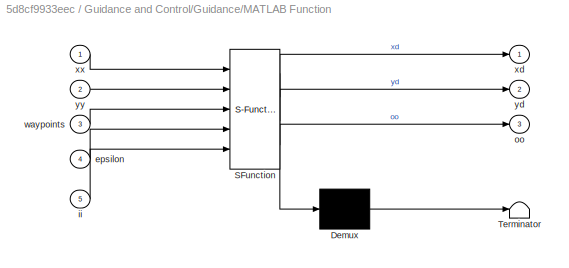
BLOCK [SubSystem] Guidance and Control/Guidance/MATLAB Function
  ErrorFcn = Stateflow.Translate.translate
  PermitHierarchicalResolution = ExplicitOnly
  Ports = [5, 3]
  RequestExecContextInheritance = off
  SFBlockType = MATLAB Function
  TreatAsAtomicUnit = on
BLOCK [Demux] Guidance and Control/Guidance/MATLAB Function/ Demux 
  Outputs = 1
  Ports = [1, 1]
BLOCK [S-Function] Guidance and Control/Guidance/MATLAB Function/ SFunction 
  EnableBusSupport = on
  FunctionName = sf_sfun
  PortCounts = [5 4]
  Ports = [5, 4]
  Tag = Stateflow S-Function Boat_Simulation_Current 3
BLOCK [Terminator] Guidance and Control/Guidance/MATLAB Function/ Terminator 
BLOCK [Inport] Guidance and Control/Guidance/MATLAB Function/epsilon
  IconDisplay = Port number
  Port = 4
BLOCK [Inport] Guidance and Control/Guidance/MATLAB Function/ii
  IconDisplay = Port number
  Port = 5
BLOCK [Outport] Guidance and Control/Guidance/MATLAB Function/oo
  IconDisplay = Port number
  Port = 3
BLOCK [Inport] Guidance and Control/Guidance/MATLAB Function/waypoints
  IconDisplay = Port number
  Port = 3
BLOCK [Outport] Guidance and Control/Guidance/MATLAB Function/xd
  IconDisplay = Port number
BLOCK [Inport] Guidance and Control/Guidance/MATLAB Function/xx
  IconDisplay = Port number
BLOCK [Outport] Guidance and Control/Guidance/MATLAB Function/yd
  IconDisplay = Port number
  Port = 2
BLOCK [Inport] Guidance and Control/Guidance/MATLAB Function/yy
  IconDisplay = Port number
  Port = 2
BLOCK [Scope] Guidance and Control/Guidance/Scope
  Floating = off
  NumInputPorts = 1
  Ports = [1]
  SaveName = ScopeData2
  ShowLegends = on
BLOCK [Sum] Guidance and Control/Guidance/Sum
  IconShape = round
  InputSameDT = off
  Inputs = |-+
  OutDataTypeStr = Inherit: Inherit via internal rule
  Ports = [2, 1]
  SaturateOnIntegerOverflow = off
BLOCK [Sum] Guidance and Control/Guidance/Sum1
  IconShape = round
  InputSameDT = off
  Inputs = |-+
  OutDataTypeStr = Inherit: Inherit via internal rule
  Ports = [2, 1]
  SaturateOnIntegerOverflow = off
BLOCK [Trigonometry] Guidance and Control/Guidance/Trigonometric Function
  Operator = atan2
  Ports = [2, 1]
BLOCK [Concatenate] Guidance and Control/Guidance/Vector Concatenate
  NumInputs = 3
  Ports = [3, 1]
BLOCK [Inport] Guidance and Control/Guidance/X
  IconDisplay = Port number
BLOCK [Inport] Guidance and Control/Guidance/Y
  IconDisplay = Port number
  Port = 2
BLOCK [Inport] Guidance and Control/Guidance/theta
  IconDisplay = Port number
  Port = 3
BLOCK [Outport] Guidance and Control/Guidance/theta_d
  IconDisplay = Port number
BLOCK [Constant] Guidance and Control/Guidance/waypoints
  Value = waypoints
BLOCK [Constant] Guidance and Control/Guidance/waypoints1
  Value = 0.01
BLOCK [Constant] Guidance and Control/Guidance/waypoints2
  Commented = on
  Value = xd
BLOCK [Constant] Guidance and Control/Guidance/waypoints3
  Commented = on
  Value = yd
BLOCK [Outport] Guidance and Control/Guidance/xdd_d
  IconDisplay = Port number
  Port = 2
BLOCK [Inport] Guidance and Control/Nav_Accel_est
  IconDisplay = Port number
BLOCK [Scope] Guidance and Control/Scope
  Floating = off
  NumInputPorts = 1
  Ports = [1]
  SaveName = ScopeData4
BLOCK [Sqrt] Guidance and Control/Sqrt
BLOCK [Outport] Guidance and Control/TL
  IconDisplay = Port number
BLOCK [Outport] Guidance and Control/TR
  IconDisplay = Port number
  Port = 2
BLOCK [Inport] Guidance and Control/Theta_est_rad
  IconDisplay = Port number
  Port = 6
BLOCK [Concatenate] Guidance and Control/Vector Concatenate
  Ports = [2, 1]
BLOCK [Inport] Guidance and Control/X_est
  IconDisplay = Port number
  Port = 4
BLOCK [Inport] Guidance and Control/Y_est
  IconDisplay = Port number
  Port = 5
BLOCK [SubSystem] Navigation
  Ports = [6, 6]
  RequestExecContextInheritance = off
BLOCK [Inport] Navigation/Body Rot Accels
  IconDisplay = Port number
  Port = 3
BLOCK [Inport] Navigation/Body Rot Rates
  IconDisplay = Port number
  Port = 2
BLOCK [Outport] Navigation/Body_Rot_Accel_est
  IconDisplay = Port number
  Port = 3
BLOCK [Outport] Navigation/Body_Rot_Rate_est
  IconDisplay = Port number
  Port = 2
BLOCK [Inport] Navigation/Nav Accels
  IconDisplay = Port number
BLOCK [Outport] Navigation/Nav_accel_est
  IconDisplay = Port number
BLOCK [Inport] Navigation/X
  IconDisplay = Port number
  Port = 4
BLOCK [Outport] Navigation/X_est
  IconDisplay = Port number
  Port = 4
BLOCK [Inport] Navigation/Y
  IconDisplay = Port number
  Port = 5
BLOCK [Outport] Navigation/Y_est
  IconDisplay = Port number
  Port = 5
BLOCK [Inport] Navigation/theta
  IconDisplay = Port number
  Port = 6
BLOCK [Outport] Navigation/theta_est_rad
  IconDisplay = Port number
  Port = 6
ANNOTATION Boat Model/Forces and Moments/Actuators: Left Motor
ANNOTATION Boat Model/Forces and Moments/Actuators: Right Motor
ANNOTATION Boat Model/Forces and Moments/Actuators/DC motor: i
ANNOTATION Boat Model/Forces and Moments/Actuators/DC motor: w
ANNOTATION Boat Model/Forces and Moments/Actuators/DC motor1: i
ANNOTATION Boat Model/Forces and Moments/Actuators/DC motor1: w
ANNOTATION Guidance and Control/Guidance: theta_d
LINE Boat Model/3 Axis Accel:1 -> Boat Model/Nav Axis Accel:1
LINE Boat Model/3 Axis Body Rot Rates:1 -> Boat Model/Body Rot Rates:1
LINE Boat Model/3 Axis Body1:1 -> Boat Model/Boat Velocity Vector:1
LINE Boat Model/3 Axis Body:1 -> Boat Model/Body Rot Accels:1
NET Boat Model/Constant1:1 -> Boat Model/3 Axis Body Rot Rates:1, Boat Model/3 Axis Body Rot Rates:2
NET Boat Model/Constant2:1 -> Boat Model/3 Axis Body:1, Boat Model/3 Axis Body:2
LINE Boat Model/Constant:1 -> Boat Model/3 Axis Accel:3
LINE Boat Model/Forces and Moments/Actuators/DC motor/1// J:1 -> Boat Model/Forces and Moments/Actuators/DC motor/Integrator1:1
LINE Boat Model/Forces and Moments/Actuators/DC motor/1// L:1 -> Boat Model/Forces and Moments/Actuators/DC motor/Integrator2:1
NET Boat Model/Forces and Moments/Actuators/DC motor/Integrator1:1 -> Boat Model/Forces and Moments/Actuators/DC motor/Kphi :1, Boat Model/Forces and Moments/Actuators/DC motor/b:1, Boat Model/Forces and Moments/Actuators/DC motor/w:1
NET Boat Model/Forces and Moments/Actuators/DC motor/Integrator2:1 -> Boat Model/Forces and Moments/Actuators/DC motor/Kphi:1, Boat Model/Forces and Moments/Actuators/DC motor/R:1, Boat Model/Forces and Moments/Actuators/DC motor/i:1
LINE Boat Model/Forces and Moments/Actuators/DC motor/Kphi :1 -> Boat Model/Forces and Moments/Actuators/DC motor/Sum:3
LINE Boat Model/Forces and Moments/Actuators/DC motor/Kphi:1 -> Boat Model/Forces and Moments/Actuators/DC motor/Sum1:1
LINE Boat Model/Forces and Moments/Actuators/DC motor/R:1 -> Boat Model/Forces and Moments/Actuators/DC motor/Sum:2
LINE Boat Model/Forces and Moments/Actuators/DC motor/Sum1:1 -> Boat Model/Forces and Moments/Actuators/DC motor/1// J:1
LINE Boat Model/Forces and Moments/Actuators/DC motor/Sum:1 -> Boat Model/Forces and Moments/Actuators/DC motor/1// L:1
LINE Boat Model/Forces and Moments/Actuators/DC motor/V:1 -> Boat Model/Forces and Moments/Actuators/DC motor/Sum:1
LINE Boat Model/Forces and Moments/Actuators/DC motor/b:1 -> Boat Model/Forces and Moments/Actuators/DC motor/Sum1:2
LINE Boat Model/Forces and Moments/Actuators/DC motor1/1// J:1 -> Boat Model/Forces and Moments/Actuators/DC motor1/Integrator1:1
LINE Boat Model/Forces and Moments/Actuators/DC motor1/1// L:1 -> Boat Model/Forces and Moments/Actuators/DC motor1/Integrator2:1
NET Boat Model/Forces and Moments/Actuators/DC motor1/Integrator1:1 -> Boat Model/Forces and Moments/Actuators/DC motor1/Kphi :1, Boat Model/Forces and Moments/Actuators/DC motor1/b:1, Boat Model/Forces and Moments/Actuators/DC motor1/w:1
NET Boat Model/Forces and Moments/Actuators/DC motor1/Integrator2:1 -> Boat Model/Forces and Moments/Actuators/DC motor1/Kphi:1, Boat Model/Forces and Moments/Actuators/DC motor1/R:1, Boat Model/Forces and Moments/Actuators/DC motor1/i:1
LINE Boat Model/Forces and Moments/Actuators/DC motor1/Kphi :1 -> Boat Model/Forces and Moments/Actuators/DC motor1/Sum:3
LINE Boat Model/Forces and Moments/Actuators/DC motor1/Kphi:1 -> Boat Model/Forces and Moments/Actuators/DC motor1/Sum1:1
LINE Boat Model/Forces and Moments/Actuators/DC motor1/R:1 -> Boat Model/Forces and Moments/Actuators/DC motor1/Sum:2
LINE Boat Model/Forces and Moments/Actuators/DC motor1/Sum1:1 -> Boat Model/Forces and Moments/Actuators/DC motor1/1// J:1
LINE Boat Model/Forces and Moments/Actuators/DC motor1/Sum:1 -> Boat Model/Forces and Moments/Actuators/DC motor1/1// L:1
LINE Boat Model/Forces and Moments/Actuators/DC motor1/V:1 -> Boat Model/Forces and Moments/Actuators/DC motor1/Sum:1
LINE Boat Model/Forces and Moments/Actuators/DC motor1/b:1 -> Boat Model/Forces and Moments/Actuators/DC motor1/Sum1:2
LINE Boat Model/Forces and Moments/Actuators/DC motor1:1 -> Boat Model/Forces and Moments/Actuators/Prop Angular Velocity to Thrust1:1
LINE Boat Model/Forces and Moments/Actuators/DC motor:1 -> Boat Model/Forces and Moments/Actuators/Prop Angular Velocity to Thrust:1
LINE Boat Model/Forces and Moments/Actuators/Prop Angular Velocity to Thrust1:1 -> Boat Model/Forces and Moments/Actuators/F_Thrust_R:1
LINE Boat Model/Forces and Moments/Actuators/Prop Angular Velocity to Thrust:1 -> Boat Model/Forces and Moments/Actuators/F_Thrust_L:1
LINE Boat Model/Forces and Moments/Actuators/VL:1 -> Boat Model/Forces and Moments/Actuators/DC motor:1
LINE Boat Model/Forces and Moments/Actuators/VR:1 -> Boat Model/Forces and Moments/Actuators/DC motor1:1
LINE Boat Model/Forces and Moments/Conversion to Forces and Moments/Constant:1 -> Boat Model/Forces and Moments/Conversion to Forces and Moments/F_Thrust_perp:1
LINE Boat Model/Forces and Moments/Conversion to Forces and Moments/Divide:1 -> Boat Model/Forces and Moments/Conversion to Forces and Moments/Mz_Motors:1
NET Boat Model/Forces and Moments/Conversion to Forces and Moments/F_Thrust_L:1 -> Boat Model/Forces and Moments/Conversion to Forces and Moments/Sum1:1, Boat Model/Forces and Moments/Conversion to Forces and Moments/Sum:1
NET Boat Model/Forces and Moments/Conversion to Forces and Moments/F_Thrust_R:1 -> Boat Model/Forces and Moments/Conversion to Forces and Moments/Sum1:2, Boat Model/Forces and Moments/Conversion to Forces and Moments/Sum:2
LINE Boat Model/Forces and Moments/Conversion to Forces and Moments/Sum1:1 -> Boat Model/Forces and Moments/Conversion to Forces and Moments/Divide:1
LINE Boat Model/Forces and Moments/Conversion to Forces and Moments/Sum:1 -> Boat Model/Forces and Moments/Conversion to Forces and Moments/F_Thrust_para:1
LINE Boat Model/Forces and Moments/Conversion to Forces and Moments/d_motors//2:1 -> Boat Model/Forces and Moments/Conversion to Forces and Moments/Divide:2
LINE Boat Model/Forces and Moments/Conversion to Forces and Moments:1 -> Boat Model/Forces and Moments/F_thrust_para:1
LINE Boat Model/Forces and Moments/Conversion to Forces and Moments:2 -> Boat Model/Forces and Moments/F_thrust_perp:1
LINE Boat Model/Forces and Moments/Conversion to Forces and Moments:3 -> Boat Model/Forces and Moments/Mz_motors:1
LINE Boat Model/Forces and Moments/Drag Model/Local Flow Velocity TLU/U_field:1 -> Boat Model/Forces and Moments/Drag Model/Local Flow Velocity TLU/u_flow:1
LINE Boat Model/Forces and Moments/Drag Model/Local Flow Velocity TLU/V_field:1 -> Boat Model/Forces and Moments/Drag Model/Local Flow Velocity TLU/v_flow:1
NET Boat Model/Forces and Moments/Drag Model/Local Flow Velocity TLU/x_boat:1 -> Boat Model/Forces and Moments/Drag Model/Local Flow Velocity TLU/U_field:1, Boat Model/Forces and Moments/Drag Model/Local Flow Velocity TLU/V_field:1
NET Boat Model/Forces and Moments/Drag Model/Local Flow Velocity TLU/y_boat:1 -> Boat Model/Forces and Moments/Drag Model/Local Flow Velocity TLU/U_field:2, Boat Model/Forces and Moments/Drag Model/Local Flow Velocity TLU/V_field:2
NET Boat Model/Forces and Moments/Drag Model/Local Flow Velocity TLU:1 -> Boat Model/Forces and Moments/Drag Model/Mux:1, Boat Model/Forces and Moments/Drag Model/Rotate into Body Frame :1
NET Boat Model/Forces and Moments/Drag Model/Local Flow Velocity TLU:2 -> Boat Model/Forces and Moments/Drag Model/Mux:2, Boat Model/Forces and Moments/Drag Model/Rotate into Body Frame :2
LINE Boat Model/Forces and Moments/Drag Model/Mux:1 -> Boat Model/Forces and Moments/Drag Model/Scope:1
NET Boat Model/Forces and Moments/Drag Model/Rotate into Body Frame /Sum:1 -> Boat Model/Forces and Moments/Drag Model/Rotate into Body Frame /cos :1, Boat Model/Forces and Moments/Drag Model/Rotate into Body Frame /sin:1
LINE Boat Model/Forces and Moments/Drag Model/Rotate into Body Frame /Trigonometric Function:1 -> Boat Model/Forces and Moments/Drag Model/Rotate into Body Frame /Sum:2
LINE Boat Model/Forces and Moments/Drag Model/Rotate into Body Frame /Vector Magnitude/In1:1 -> Boat Model/Forces and Moments/Drag Model/Rotate into Body Frame /Vector Magnitude/Math Function:1
LINE Boat Model/Forces and Moments/Drag Model/Rotate into Body Frame /Vector Magnitude/In2:1 -> Boat Model/Forces and Moments/Drag Model/Rotate into Body Frame /Vector Magnitude/Math Function1:1
LINE Boat Model/Forces and Moments/Drag Model/Rotate into Body Frame /Vector Magnitude/Math Function1:1 -> Boat Model/Forces and Moments/Drag Model/Rotate into Body Frame /Vector Magnitude/Sum1:2
LINE Boat Model/Forces and Moments/Drag Model/Rotate into Body Frame /Vector Magnitude/Math Function:1 -> Boat Model/Forces and Moments/Drag Model/Rotate into Body Frame /Vector Magnitude/Sum1:1
LINE Boat Model/Forces and Moments/Drag Model/Rotate into Body Frame /Vector Magnitude/Sqrt:1 -> Boat Model/Forces and Moments/Drag Model/Rotate into Body Frame /Vector Magnitude/Mag:1
LINE Boat Model/Forces and Moments/Drag Model/Rotate into Body Frame /Vector Magnitude/Sum1:1 -> Boat Model/Forces and Moments/Drag Model/Rotate into Body Frame /Vector Magnitude/Sqrt:1
NET Boat Model/Forces and Moments/Drag Model/Rotate into Body Frame /Vector Magnitude:1 -> Boat Model/Forces and Moments/Drag Model/Rotate into Body Frame /v_flow_cos:2, Boat Model/Forces and Moments/Drag Model/Rotate into Body Frame /v_flow_sin:2
LINE Boat Model/Forces and Moments/Drag Model/Rotate into Body Frame /cos :1 -> Boat Model/Forces and Moments/Drag Model/Rotate into Body Frame /v_flow_sin:1
LINE Boat Model/Forces and Moments/Drag Model/Rotate into Body Frame /sin:1 -> Boat Model/Forces and Moments/Drag Model/Rotate into Body Frame /v_flow_cos:1
LINE Boat Model/Forces and Moments/Drag Model/Rotate into Body Frame /theta_boat:1 -> Boat Model/Forces and Moments/Drag Model/Rotate into Body Frame /Sum:1
NET Boat Model/Forces and Moments/Drag Model/Rotate into Body Frame /u_flow:1 -> Boat Model/Forces and Moments/Drag Model/Rotate into Body Frame /Trigonometric Function:1, Boat Model/Forces and Moments/Drag Model/Rotate into Body Frame /Vector Magnitude:2
NET Boat Model/Forces and Moments/Drag Model/Rotate into Body Frame /v_flow:1 -> Boat Model/Forces and Moments/Drag Model/Rotate into Body Frame /Trigonometric Function:2, Boat Model/Forces and Moments/Drag Model/Rotate into Body Frame /Vector Magnitude:1
LINE Boat Model/Forces and Moments/Drag Model/Rotate into Body Frame /v_flow_cos:1 -> Boat Model/Forces and Moments/Drag Model/Rotate into Body Frame /parallel_flow:1
LINE Boat Model/Forces and Moments/Drag Model/Rotate into Body Frame /v_flow_sin:1 -> Boat Model/Forces and Moments/Drag Model/Rotate into Body Frame /perp_flow:1
LINE Boat Model/Forces and Moments/Drag Model/Rotate into Body Frame :1 -> Boat Model/Forces and Moments/Drag Model/Sum:2
LINE Boat Model/Forces and Moments/Drag Model/Rotate into Body Frame :2 -> Boat Model/Forces and Moments/Drag Model/Sum1:1
LINE Boat Model/Forces and Moments/Drag Model/Sum1:1 -> Boat Model/Forces and Moments/Drag Model/k_drag_perp:1
LINE Boat Model/Forces and Moments/Drag Model/Sum:1 -> Boat Model/Forces and Moments/Drag Model/k_drag_para:1
LINE Boat Model/Forces and Moments/Drag Model/k_drag_para:1 -> Boat Model/Forces and Moments/Drag Model/Fd_para:1
LINE Boat Model/Forces and Moments/Drag Model/k_drag_perp:1 -> Boat Model/Forces and Moments/Drag Model/Fd_perp:1
LINE Boat Model/Forces and Moments/Drag Model/k_drag_rot:1 -> Boat Model/Forces and Moments/Drag Model/Mz_drag:1
LINE Boat Model/Forces and Moments/Drag Model/theta_boat:1 -> Boat Model/Forces and Moments/Drag Model/Rotate into Body Frame :3
LINE Boat Model/Forces and Moments/Drag Model/theta_dot_boat:1 -> Boat Model/Forces and Moments/Drag Model/k_drag_rot:1
LINE Boat Model/Forces and Moments/Drag Model/v_para_boat:1 -> Boat Model/Forces and Moments/Drag Model/Sum:1
LINE Boat Model/Forces and Moments/Drag Model/v_perp_boat:1 -> Boat Model/Forces and Moments/Drag Model/Sum1:2
LINE Boat Model/Forces and Moments/Drag Model/x_boat:1 -> Boat Model/Forces and Moments/Drag Model/Local Flow Velocity TLU:1
LINE Boat Model/Forces and Moments/Drag Model/y_boat:1 -> Boat Model/Forces and Moments/Drag Model/Local Flow Velocity TLU:2
NET Boat Model/Forces and Moments/Drag Model:1 -> Boat Model/Forces and Moments/F_drag_para:1, Boat Model/Forces and Moments/Mux1:1
NET Boat Model/Forces and Moments/Drag Model:2 -> Boat Model/Forces and Moments/F_drag_perp:1, Boat Model/Forces and Moments/Mux1:2
LINE Boat Model/Forces and Moments/Drag Model:3 -> Boat Model/Forces and Moments/Mz_drag:1
LINE Boat Model/Forces and Moments/Mux1:1 -> Boat Model/Forces and Moments/Scope1:1
LINE Boat Model/Forces and Moments/TL:1 -> Boat Model/Forces and Moments/Conversion to Forces and Moments:1
LINE Boat Model/Forces and Moments/TR:1 -> Boat Model/Forces and Moments/Conversion to Forces and Moments:2
LINE Boat Model/Forces and Moments/VL:1 -> Boat Model/Forces and Moments/Actuators:1
LINE Boat Model/Forces and Moments/VR:1 -> Boat Model/Forces and Moments/Actuators:2
LINE Boat Model/Forces and Moments/X_boat:1 -> Boat Model/Forces and Moments/Drag Model:1
LINE Boat Model/Forces and Moments/Y_boat:1 -> Boat Model/Forces and Moments/Drag Model:2
LINE Boat Model/Forces and Moments/theta_boat:1 -> Boat Model/Forces and Moments/Drag Model:5
LINE Boat Model/Forces and Moments/theta_dot_boat:1 -> Boat Model/Forces and Moments/Drag Model:6
LINE Boat Model/Forces and Moments/vx_boat:1 -> Boat Model/Forces and Moments/Drag Model:3
LINE Boat Model/Forces and Moments/vy_boat:1 -> Boat Model/Forces and Moments/Drag Model:4
LINE Boat Model/Forces and Moments:1 -> Boat Model/Rigid Body Motion:1
LINE Boat Model/Forces and Moments:2 -> Boat Model/Rigid Body Motion:2
LINE Boat Model/Forces and Moments:3 -> Boat Model/Rigid Body Motion:3
LINE Boat Model/Forces and Moments:4 -> Boat Model/Rigid Body Motion:4
LINE Boat Model/Forces and Moments:5 -> Boat Model/Rigid Body Motion:5
LINE Boat Model/Forces and Moments:6 -> Boat Model/Rigid Body Motion:6
LINE Boat Model/Rigid Body Motion/3DOF (Body Axes):1 -> Boat Model/Rigid Body Motion/MATLAB Function:1
LINE Boat Model/Rigid Body Motion/3DOF (Body Axes):2 -> Boat Model/Rigid Body Motion/theta_dot_boat:1
LINE Boat Model/Rigid Body Motion/3DOF (Body Axes):3 -> Boat Model/Rigid Body Motion/theta_ddot_boat:1
NET Boat Model/Rigid Body Motion/3DOF (Body Axes):4 -> Boat Model/Rigid Body Motion/Demux:1, Boat Model/Rigid Body Motion/Scope:1
LINE Boat Model/Rigid Body Motion/3DOF (Body Axes):5 -> Boat Model/Rigid Body Motion/Demux1:1
LINE Boat Model/Rigid Body Motion/3DOF (Body Axes):6 -> Boat Model/Rigid Body Motion/Demux2:1
LINE Boat Model/Rigid Body Motion/Demux1:1 -> Boat Model/Rigid Body Motion/vx_boat:1
LINE Boat Model/Rigid Body Motion/Demux1:2 -> Boat Model/Rigid Body Motion/vy_boat:1
LINE Boat Model/Rigid Body Motion/Demux2:1 -> Boat Model/Rigid Body Motion/ax_boat:1
LINE Boat Model/Rigid Body Motion/Demux2:2 -> Boat Model/Rigid Body Motion/ay_boat:1
LINE Boat Model/Rigid Body Motion/Demux:1 -> Boat Model/Rigid Body Motion/X_boat:1
LINE Boat Model/Rigid Body Motion/Demux:2 -> Boat Model/Rigid Body Motion/Y_boat:1
LINE Boat Model/Rigid Body Motion/F_Thrust_para:1 -> Boat Model/Rigid Body Motion/Sum:1
LINE Boat Model/Rigid Body Motion/F_Thrust_perp:1 -> Boat Model/Rigid Body Motion/Sum1:1
LINE Boat Model/Rigid Body Motion/F_drag_para:1 -> Boat Model/Rigid Body Motion/Sum:2
LINE Boat Model/Rigid Body Motion/F_drag_perp:1 -> Boat Model/Rigid Body Motion/Sum1:2
LINE Boat Model/Rigid Body Motion/MATLAB Function:1 -> Boat Model/Rigid Body Motion/theta_boat_rad:1
LINE Boat Model/Rigid Body Motion/Mz_Motors:1 -> Boat Model/Rigid Body Motion/Sum2:1
LINE Boat Model/Rigid Body Motion/Mz_drag:1 -> Boat Model/Rigid Body Motion/Sum2:2
LINE Boat Model/Rigid Body Motion/Sum1:1 -> Boat Model/Rigid Body Motion/3DOF (Body Axes):2
LINE Boat Model/Rigid Body Motion/Sum2:1 -> Boat Model/Rigid Body Motion/3DOF (Body Axes):3
LINE Boat Model/Rigid Body Motion/Sum:1 -> Boat Model/Rigid Body Motion/3DOF (Body Axes):1
NET Boat Model/Rigid Body Motion:1 -> Boat Model/3 Axis Body1:1, Boat Model/Forces and Moments:3
NET Boat Model/Rigid Body Motion:2 -> Boat Model/3 Axis Body1:2, Boat Model/Forces and Moments:4
NET Boat Model/Rigid Body Motion:3 -> Boat Model/Forces and Moments:5, Boat Model/Scope:1, Boat Model/theta_rad:1
NET Boat Model/Rigid Body Motion:4 -> Boat Model/3 Axis Body Rot Rates:3, Boat Model/Forces and Moments:6
NET Boat Model/Rigid Body Motion:5 -> Boat Model/Forces and Moments:7, Boat Model/X:1, Boat Model/XY Graph:1
NET Boat Model/Rigid Body Motion:6 -> Boat Model/Forces and Moments:8, Boat Model/XY Graph:2, Boat Model/Y:1
LINE Boat Model/Rigid Body Motion:7 -> Boat Model/3 Axis Accel:1
LINE Boat Model/Rigid Body Motion:8 -> Boat Model/3 Axis Accel:2
LINE Boat Model/Rigid Body Motion:9 -> Boat Model/3 Axis Body:3
LINE Boat Model/TL:1 -> Boat Model/Forces and Moments:9
LINE Boat Model/TR:1 -> Boat Model/Forces and Moments:10
LINE Boat Model:1 -> Navigation:1
LINE Boat Model:2 -> Navigation:2
LINE Boat Model:3 -> Navigation:3
LINE Boat Model:4 -> Navigation:4
LINE Boat Model:5 -> Navigation:5
LINE Boat Model:6 -> Navigation:6
LINE Boat Model:7 -> Guidance and Control:7
NET Guidance and Control/Boat Velocity Vector:1 -> Guidance and Control/Dot Product:1, Guidance and Control/Dot Product:2
LINE Guidance and Control/Body_Rot_Rate_est:1 -> Guidance and Control/Controls:3
NET Guidance and Control/Controls/Axial Control Loops/PID Controller:1 -> Guidance and Control/Controls/Axial Control Loops/Scope:1, Guidance and Control/Controls/Axial Control Loops/xdd_err:1
LINE Guidance and Control/Controls/Axial Control Loops/Sum:1 -> Guidance and Control/Controls/Axial Control Loops/PID Controller:1
LINE Guidance and Control/Controls/Axial Control Loops/xdd:1 -> Guidance and Control/Controls/Axial Control Loops/Sum:1
LINE Guidance and Control/Controls/Axial Control Loops/xdd_d:1 -> Guidance and Control/Controls/Axial Control Loops/Sum:2
LINE Guidance and Control/Controls/Axial Control Loops:1 -> Guidance and Control/Controls/Prop Allocation:2
LINE Guidance and Control/Controls/Demux:3 -> Guidance and Control/Controls/Rotation Control Loops:3
LINE Guidance and Control/Controls/Prop Allocation/Gain1:1 -> Guidance and Control/Controls/Prop Allocation/Sum:1
NET Guidance and Control/Controls/Prop Allocation/Gain2:1 -> Guidance and Control/Controls/Prop Allocation/Sum1:2, Guidance and Control/Controls/Prop Allocation/Sum:2
NET Guidance and Control/Controls/Prop Allocation/Gain:1 -> Guidance and Control/Controls/Prop Allocation/Gain1:1, Guidance and Control/Controls/Prop Allocation/Sum1:1
LINE Guidance and Control/Controls/Prop Allocation/Sum1:1 -> Guidance and Control/Controls/Prop Allocation/TR:1
LINE Guidance and Control/Controls/Prop Allocation/Sum:1 -> Guidance and Control/Controls/Prop Allocation/TL:1
LINE Guidance and Control/Controls/Prop Allocation/theta_err:1 -> Guidance and Control/Controls/Prop Allocation/Gain:1
LINE Guidance and Control/Controls/Prop Allocation/xdd_err:1 -> Guidance and Control/Controls/Prop Allocation/Gain2:1
LINE Guidance and Control/Controls/Prop Allocation:1 -> Guidance and Control/Controls/TL:1
LINE Guidance and Control/Controls/Prop Allocation:2 -> Guidance and Control/Controls/TR:1
LINE Guidance and Control/Controls/Rotation Control Loops/Constant:1 -> Guidance and Control/Controls/Rotation Control Loops/Sum2:2
NET Guidance and Control/Controls/Rotation Control Loops/MATLAB Function:1 -> Guidance and Control/Controls/Rotation Control Loops/Mux:1, Guidance and Control/Controls/Rotation Control Loops/Sum1:2
LINE Guidance and Control/Controls/Rotation Control Loops/Mux:1 -> Guidance and Control/Controls/Rotation Control Loops/Scope2:1
LINE Guidance and Control/Controls/Rotation Control Loops/PID Controller:1 -> Guidance and Control/Controls/Rotation Control Loops/Theta_err:1
LINE Guidance and Control/Controls/Rotation Control Loops/Sum1:1 -> Guidance and Control/Controls/Rotation Control Loops/PID Controller:1
NET Guidance and Control/Controls/Rotation Control Loops/Sum2:1 -> Guidance and Control/Controls/Rotation Control Loops/MATLAB Function:2, Guidance and Control/Controls/Rotation Control Loops/Mux:3
NET Guidance and Control/Controls/Rotation Control Loops/Theta:1 -> Guidance and Control/Controls/Rotation Control Loops/MATLAB Function:1, Guidance and Control/Controls/Rotation Control Loops/Mux:2
LINE Guidance and Control/Controls/Rotation Control Loops/Theta_d:1 -> Guidance and Control/Controls/Rotation Control Loops/Sum2:1
LINE Guidance and Control/Controls/Rotation Control Loops/Theta_dot_est:1 -> Guidance and Control/Controls/Rotation Control Loops/k_drag_rot:1
LINE Guidance and Control/Controls/Rotation Control Loops/dt:1 -> Guidance and Control/Controls/Rotation Control Loops/Sum1:1
LINE Guidance and Control/Controls/Rotation Control Loops/k_drag_rot:1 -> Guidance and Control/Controls/Rotation Control Loops/dt:1
LINE Guidance and Control/Controls/Rotation Control Loops:1 -> Guidance and Control/Controls/Prop Allocation:1
LINE Guidance and Control/Controls/Theta:1 -> Guidance and Control/Controls/Rotation Control Loops:1
LINE Guidance and Control/Controls/Theta_d:1 -> Guidance and Control/Controls/Rotation Control Loops:2
LINE Guidance and Control/Controls/Theta_dot:1 -> Guidance and Control/Controls/Demux:1
LINE Guidance and Control/Controls/xdd:1 -> Guidance and Control/Controls/Axial Control Loops:1
LINE Guidance and Control/Controls/xdd_d:1 -> Guidance and Control/Controls/Axial Control Loops:2
NET Guidance and Control/Controls:1 -> Guidance and Control/TL:1, Guidance and Control/Vector Concatenate:1
NET Guidance and Control/Controls:2 -> Guidance and Control/TR:1, Guidance and Control/Vector Concatenate:2
LINE Guidance and Control/Dot Product:1 -> Guidance and Control/Sqrt:1
LINE Guidance and Control/Guidance/Constant:1 -> Guidance and Control/Guidance/xdd_d:1
LINE Guidance and Control/Guidance/Delay:1 -> Guidance and Control/Guidance/MATLAB Function:5
NET Guidance and Control/Guidance/MATLAB Function:1 -> Guidance and Control/Guidance/Sum:2, Guidance and Control/Guidance/Vector Concatenate:1
NET Guidance and Control/Guidance/MATLAB Function:2 -> Guidance and Control/Guidance/Sum1:2, Guidance and Control/Guidance/Vector Concatenate:2
LINE Guidance and Control/Guidance/MATLAB Function:3 -> Guidance and Control/Guidance/Delay:1
LINE Guidance and Control/Guidance/Sum1:1 -> Guidance and Control/Guidance/Trigonometric Function:2
LINE Guidance and Control/Guidance/Sum:1 -> Guidance and Control/Guidance/Trigonometric Function:1
LINE Guidance and Control/Guidance/Trigonometric Function:1 -> Guidance and Control/Guidance/theta_d:1
LINE Guidance and Control/Guidance/Vector Concatenate:1 -> Guidance and Control/Guidance/Scope:1
NET Guidance and Control/Guidance/X:1 -> Guidance and Control/Guidance/MATLAB Function:1, Guidance and Control/Guidance/Sum:1
NET Guidance and Control/Guidance/Y:1 -> Guidance and Control/Guidance/MATLAB Function:2, Guidance and Control/Guidance/Sum1:1
LINE Guidance and Control/Guidance/waypoints1:1 -> Guidance and Control/Guidance/MATLAB Function:4
LINE Guidance and Control/Guidance/waypoints:1 -> Guidance and Control/Guidance/MATLAB Function:3
LINE Guidance and Control/Guidance:1 -> Guidance and Control/Controls:2
LINE Guidance and Control/Guidance:2 -> Guidance and Control/Controls:5
LINE Guidance and Control/Sqrt:1 -> Guidance and Control/Controls:4
NET Guidance and Control/Theta_est_rad:1 -> Guidance and Control/Controls:1, Guidance and Control/Guidance:3
LINE Guidance and Control/Vector Concatenate:1 -> Guidance and Control/Scope:1
LINE Guidance and Control/X_est:1 -> Guidance and Control/Guidance:1
LINE Guidance and Control/Y_est:1 -> Guidance and Control/Guidance:2
LINE Guidance and Control:1 -> Boat Model:1
LINE Guidance and Control:2 -> Boat Model:2
LINE Navigation/Body Rot Accels:1 -> Navigation/Body_Rot_Accel_est:1
LINE Navigation/Body Rot Rates:1 -> Navigation/Body_Rot_Rate_est:1
LINE Navigation/Nav Accels:1 -> Navigation/Nav_accel_est:1
LINE Navigation/X:1 -> Navigation/X_est:1
LINE Navigation/Y:1 -> Navigation/Y_est:1
LINE Navigation/theta:1 -> Navigation/theta_est_rad:1
LINE Navigation:1 -> Guidance and Control:1
LINE Navigation:2 -> Guidance and Control:2
LINE Navigation:3 -> Guidance and Control:3
LINE Navigation:4 -> Guidance and Control:4
LINE Navigation:5 -> Guidance and Control:5
LINE Navigation:6 -> Guidance and Control:6
note: NET lines group one-source signal fan-out (src -> all destinations, sorted); 1:1 wires keep LINE
CHART Guidance and Control/Controls/Rotation Control Loops/MATLAB Function states=1 transitions=1
  STATE_LABEL 'eML_blk_kernel()'
  STATE_LABEL 'SCRIPT:\nfunction err = turnCorrection(theta,theta_d)\n    if (theta>0 && theta_d<0 && abs(theta-theta_d)>pi)\n        err = -(2*pi-abs(theta-theta_d));\n    elseif (theta<0 && theta_d>0 && abs(theta-theta_d)>pi)\n        err = (2*pi-abs(theta-theta_d));\n    else\n        err = theta-theta_d;\n    end\nend\n'
CHART Boat Model/Rigid Body Motion/MATLAB Function states=1 transitions=1
  STATE_LABEL 'eML_blk_kernel()'
  STATE_LABEL 'SCRIPT:\nfunction angle_wrapped = wrap2pi(angle_rad)\n    angle_wrapped = angle_rad - 2*pi*floor( (angle_rad+pi)/(2*pi) ); \nend'
CHART Guidance and Control/Guidance/MATLAB Function states=1 transitions=1
  STATE_LABEL 'eML_blk_kernel()'
  STATE_LABEL 'SCRIPT:\nfunction [xd,yd,oo] = choose_waypoint(xx,yy,waypoints,epsilon,ii)\n%#codegen\n    dist_to_lp_waypoint = norm([waypoints(ii,1)-xx,waypoints(ii,2)-yy]);\n    if dist_to_lp_waypoint < epsilon\n        oo = floor(ii+1);\n    else\n        oo = floor(ii);\n    end\n    xd = waypoints(oo,1);\n    yd = waypoints(oo,2);\nend\n'
